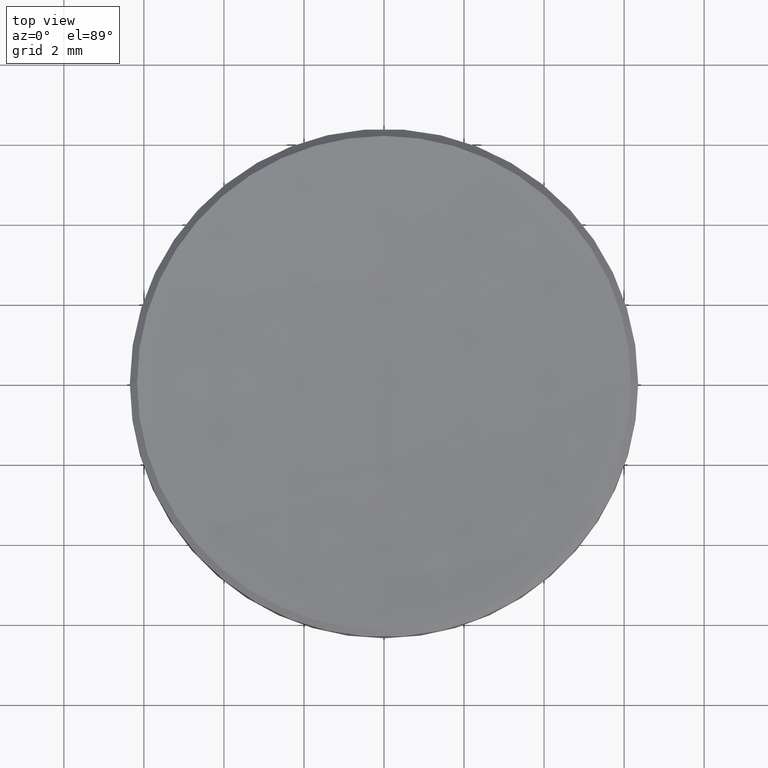
[diagram: clean part render]
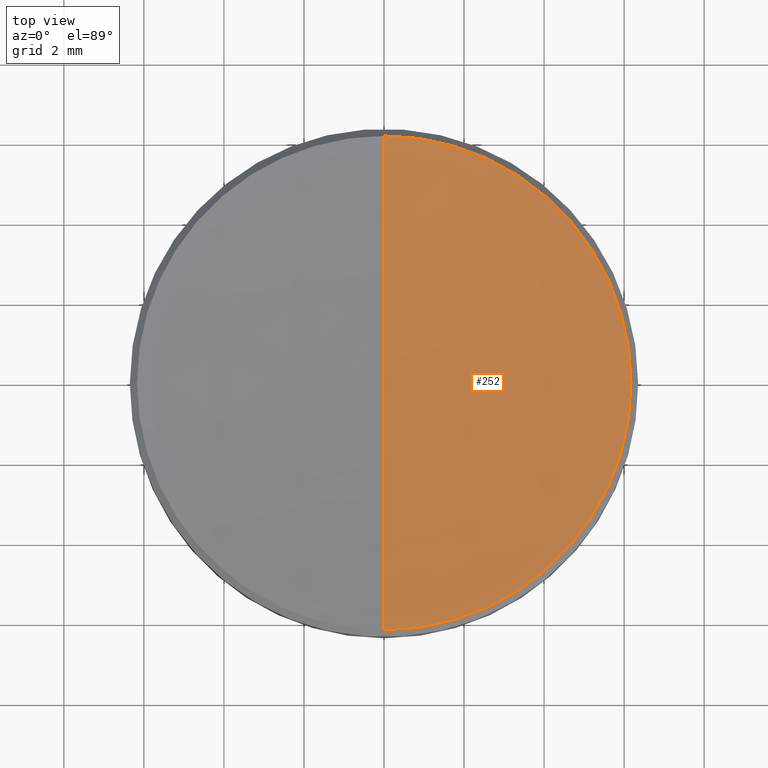
[diagram: same view with one face highlighted and labeled with its STEP entity id]
A machine part, top view. The second image highlights one B-rep face of the part: STEP entity #252.
In plain terms, the highlighted spherical surface has radius 52.8 mm.
Its self-contained STEP definition (entity closure, byte-faithful):
#25 = ORIENTED_EDGE ( 'NONE', *, *, #214, .T. ) ;
#31 = CARTESIAN_POINT ( 'NONE',  ( -7.557706131380439534E-16, -6.171335389634308832, 5.978664610365742149 ) ) ;
#36 = CARTESIAN_POINT ( 'NONE',  ( 0.000000000000000000, 0.000000000000000000, 58.41676735549417288 ) ) ;
#39 = AXIS2_PLACEMENT_3D ( 'NONE', #73, #161, #188 ) ;
#44 = ORIENTED_EDGE ( 'NONE', *, *, #108, .F. ) ;
#45 = VERTEX_POINT ( 'NONE', #179 ) ;
#53 = DIRECTION ( 'NONE',  ( 0.000000000000000000, 1.000000000000000000, 0.000000000000000000 ) ) ;
#58 = CIRCLE ( 'NONE', #223, 6.171335389634259094 ) ;
#67 = DIRECTION ( 'NONE',  ( 1.000000000000000000, 0.000000000000000000, 0.000000000000000000 ) ) ;
#73 = CARTESIAN_POINT ( 'NONE',  ( 0.000000000000000000, 0.000000000000000000, 58.41676735549417288 ) ) ;
#80 = AXIS2_PLACEMENT_3D ( 'NONE', #124, #123, #67 ) ;
#81 = AXIS2_PLACEMENT_3D ( 'NONE', #36, #82, #189 ) ;
#82 = DIRECTION ( 'NONE',  ( -1.000000000000000000, 1.224646799147353207E-16, 0.000000000000000000 ) ) ;
#85 = SPHERICAL_SURFACE ( 'NONE', #192, 52.79999999999999005 ) ;
#95 = VERTEX_POINT ( 'NONE', #203 ) ;
#100 = CARTESIAN_POINT ( 'NONE',  ( 0.000000000000000000, 0.000000000000000000, 5.978664610365738596 ) ) ;
#106 = CARTESIAN_POINT ( 'NONE',  ( 0.000000000000000000, 0.000000000000000000, 58.41676735549417288 ) ) ;
#108 = EDGE_CURVE ( 'NONE', #195, #95, #212, .T. ) ;
#110 = ORIENTED_EDGE ( 'NONE', *, *, #270, .T. ) ;
#122 = CIRCLE ( 'NONE', #81, 52.79999999999999005 ) ;
#123 = DIRECTION ( 'NONE',  ( -0.000000000000000000, -0.000000000000000000, 1.000000000000000000 ) ) ;
#124 = CARTESIAN_POINT ( 'NONE',  ( 0.000000000000000000, 0.000000000000000000, 5.978664610365738596 ) ) ;
#127 = CIRCLE ( 'NONE', #80, 6.171335389634259094 ) ;
#146 = VERTEX_POINT ( 'NONE', #31 ) ;
#148 = FACE_OUTER_BOUND ( 'NONE', #221, .T. ) ;
#161 = DIRECTION ( 'NONE',  ( 1.000000000000000000, 0.000000000000000000, 0.000000000000000000 ) ) ;
#175 = ORIENTED_EDGE ( 'NONE', *, *, #241, .T. ) ;
#179 = CARTESIAN_POINT ( 'NONE',  ( 6.171335389634259094, 7.667106652983034787E-16, 5.978664610365738596 ) ) ;
#184 = DIRECTION ( 'NONE',  ( -0.000000000000000000, -0.000000000000000000, 1.000000000000000000 ) ) ;
#188 = DIRECTION ( 'NONE',  ( 0.000000000000000000, 0.000000000000000000, -1.000000000000000000 ) ) ;
#189 = DIRECTION ( 'NONE',  ( -1.224646799147353207E-16, -1.000000000000000000, 0.000000000000000000 ) ) ;
#192 = AXIS2_PLACEMENT_3D ( 'NONE', #106, #281, #53 ) ;
#195 = VERTEX_POINT ( 'NONE', #200 ) ;
#200 = CARTESIAN_POINT ( 'NONE',  ( 0.000000000000000000, 3.233067549749012013E-15, 5.616767355494177494 ) ) ;
#203 = CARTESIAN_POINT ( 'NONE',  ( 0.000000000000000000, 6.171335389634308832, 5.978664610365742149 ) ) ;
#212 = CIRCLE ( 'NONE', #39, 52.79999999999999005 ) ;
#214 = EDGE_CURVE ( 'NONE', #146, #45, #127, .T. ) ;
#221 = EDGE_LOOP ( 'NONE', ( #44, #110, #25, #175 ) ) ;
#223 = AXIS2_PLACEMENT_3D ( 'NONE', #100, #184, #277 ) ;
#241 = EDGE_CURVE ( 'NONE', #45, #95, #58, .T. ) ;
#252 = ADVANCED_FACE ( 'NONE', ( #148 ), #85, .F. ) ;
#270 = EDGE_CURVE ( 'NONE', #195, #146, #122, .T. ) ;
#277 = DIRECTION ( 'NONE',  ( 1.000000000000000000, 0.000000000000000000, 0.000000000000000000 ) ) ;
#281 = DIRECTION ( 'NONE',  ( -1.000000000000000000, 0.000000000000000000, 0.000000000000000000 ) ) ;